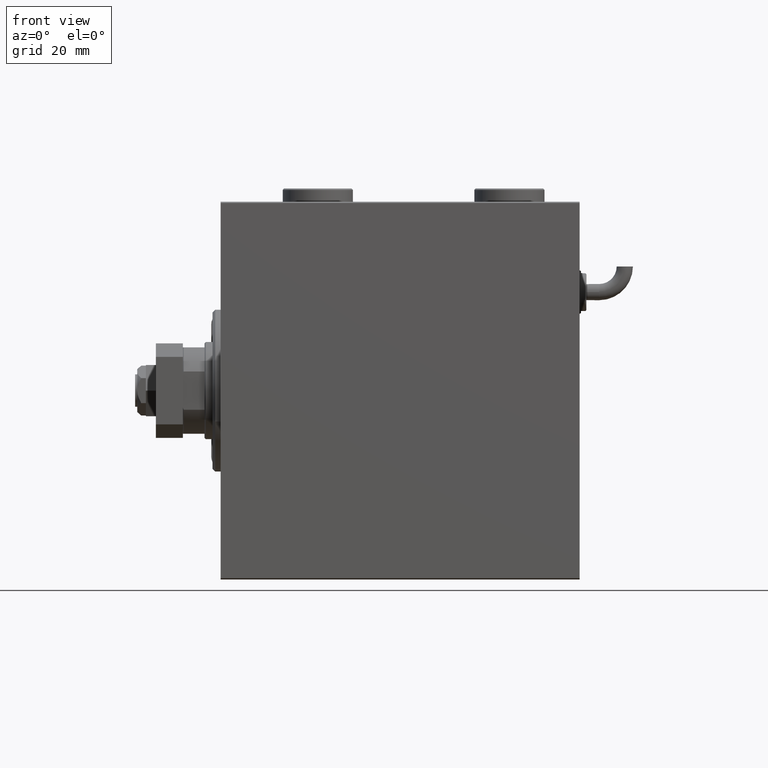
[diagram: clean part render]
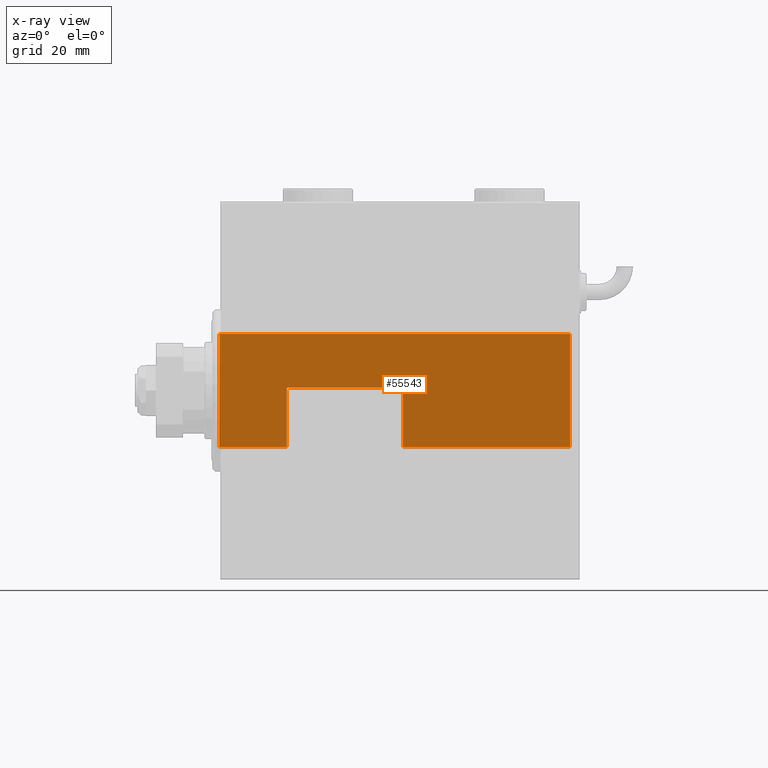
[diagram: x-ray — body ghosted, one internal face saturated and labeled with its STEP entity id]
A machine part, front view, then the same camera in x-ray: the body is ghosted and one INTERNAL B-rep face — a face not visible from any outside direction — is saturated and labeled: STEP entity #55543.
In plain terms, the highlighted planar face has unit normal (0, 1, -0).
Its self-contained STEP definition (entity closure, byte-faithful):
#2221 = CARTESIAN_POINT ( 'NONE',  ( 1.000000000000014655, 22.79999999999999716, 108.0000000000000142 ) ) ;
#3021 = ORIENTED_EDGE ( 'NONE', *, *, #56692, .T. ) ;
#3437 = CARTESIAN_POINT ( 'NONE',  ( 20.99999999999998579, 22.79999999999999716, 133.0000000000000000 ) ) ;
#6072 = CARTESIAN_POINT ( 'NONE',  ( -20.99999999999999645, 22.79999999999999716, 65.00000000000001421 ) ) ;
#6567 = LINE ( 'NONE', #39951, #26966 ) ;
#6691 = DIRECTION ( 'NONE',  ( 0.000000000000000000, 1.000000000000000000, 0.000000000000000000 ) ) ;
#7605 = CARTESIAN_POINT ( 'NONE',  ( -26.00000000000000000, 22.79999999999999716, 133.0000000000000000 ) ) ;
#8566 = CARTESIAN_POINT ( 'NONE',  ( -26.00000000000000000, 22.79999999999999716, 108.0000000000000142 ) ) ;
#8663 = VECTOR ( 'NONE', #31033, 1000.000000000000000 ) ;
#9555 = LINE ( 'NONE', #33965, #25053 ) ;
#11992 = VECTOR ( 'NONE', #46451, 1000.000000000000000 ) ;
#12627 = VERTEX_POINT ( 'NONE', #33633 ) ;
#13015 = CARTESIAN_POINT ( 'NONE',  ( -26.00000000000000000, 22.79999999999999716, 3.000000000000002665 ) ) ;
#13114 = CARTESIAN_POINT ( 'NONE',  ( -20.99999999999999645, 22.79999999999999716, 108.0000000000000142 ) ) ;
#14514 = EDGE_CURVE ( 'NONE', #46584, #46757, #26516, .T. ) ;
#15016 = EDGE_CURVE ( 'NONE', #36182, #29165, #6567, .T. ) ;
#15424 = CARTESIAN_POINT ( 'NONE',  ( -20.99999999999999645, 22.79999999999999716, 3.000000000000002665 ) ) ;
#17330 = EDGE_CURVE ( 'NONE', #34764, #29331, #9555, .T. ) ;
#17470 = LINE ( 'NONE', #60122, #33437 ) ;
#18797 = VERTEX_POINT ( 'NONE', #13114 ) ;
#19055 = VECTOR ( 'NONE', #59890, 1000.000000000000000 ) ;
#20578 = DIRECTION ( 'NONE',  ( 0.000000000000000000, -0.000000000000000000, 1.000000000000000000 ) ) ;
#23372 = ORIENTED_EDGE ( 'NONE', *, *, #36413, .F. ) ;
#24454 = CARTESIAN_POINT ( 'NONE',  ( 1.000000000000014655, 22.79999999999999716, 65.00000000000001421 ) ) ;
#24734 = ORIENTED_EDGE ( 'NONE', *, *, #17330, .T. ) ;
#24789 = DIRECTION ( 'NONE',  ( 0.000000000000000000, -0.000000000000000000, 1.000000000000000000 ) ) ;
#25053 = VECTOR ( 'NONE', #28402, 1000.000000000000000 ) ;
#25777 = LINE ( 'NONE', #30712, #8663 ) ;
#26005 = DIRECTION ( 'NONE',  ( -1.000000000000000000, 0.000000000000000000, 0.000000000000000000 ) ) ;
#26493 = DIRECTION ( 'NONE',  ( 1.000000000000000000, -0.000000000000000000, 0.000000000000000000 ) ) ;
#26516 = LINE ( 'NONE', #41065, #19055 ) ;
#26966 = VECTOR ( 'NONE', #24789, 1000.000000000000000 ) ;
#27583 = CARTESIAN_POINT ( 'NONE',  ( -26.00000000000000000, 22.79999999999999716, 65.00000000000001421 ) ) ;
#28402 = DIRECTION ( 'NONE',  ( 0.000000000000000000, 0.000000000000000000, -1.000000000000000000 ) ) ;
#29165 = VERTEX_POINT ( 'NONE', #2221 ) ;
#29331 = VERTEX_POINT ( 'NONE', #15424 ) ;
#30307 = VECTOR ( 'NONE', #26005, 1000.000000000000000 ) ;
#30712 = CARTESIAN_POINT ( 'NONE',  ( -26.00000000000000000, 22.79999999999999716, 133.0000000000000000 ) ) ;
#31033 = DIRECTION ( 'NONE',  ( 1.000000000000000000, 0.000000000000000000, 0.000000000000000000 ) ) ;
#31557 = LINE ( 'NONE', #13015, #30307 ) ;
#33437 = VECTOR ( 'NONE', #55185, 1000.000000000000000 ) ;
#33633 = CARTESIAN_POINT ( 'NONE',  ( -20.99999999999999645, 22.79999999999999716, 133.0000000000000000 ) ) ;
#33965 = CARTESIAN_POINT ( 'NONE',  ( -20.99999999999999645, 22.79999999999999716, 0.000000000000000000 ) ) ;
#34764 = VERTEX_POINT ( 'NONE', #6072 ) ;
#36182 = VERTEX_POINT ( 'NONE', #24454 ) ;
#36413 = EDGE_CURVE ( 'NONE', #46584, #29331, #31557, .T. ) ;
#36513 = ORIENTED_EDGE ( 'NONE', *, *, #58188, .T. ) ;
#38083 = EDGE_CURVE ( 'NONE', #12627, #46757, #25777, .T. ) ;
#38565 = AXIS2_PLACEMENT_3D ( 'NONE', #7605, #6691, #20578 ) ;
#39951 = CARTESIAN_POINT ( 'NONE',  ( 1.000000000000014655, 22.79999999999999716, 133.0000000000000000 ) ) ;
#40039 = ORIENTED_EDGE ( 'NONE', *, *, #14514, .T. ) ;
#41065 = CARTESIAN_POINT ( 'NONE',  ( 20.99999999999999645, 22.79999999999999716, 133.0000000000000000 ) ) ;
#45018 = EDGE_CURVE ( 'NONE', #12627, #18797, #17470, .T. ) ;
#45636 = ORIENTED_EDGE ( 'NONE', *, *, #38083, .F. ) ;
#46451 = DIRECTION ( 'NONE',  ( -1.000000000000000000, 0.000000000000000000, 0.000000000000000000 ) ) ;
#46583 = LINE ( 'NONE', #8566, #55369 ) ;
#46584 = VERTEX_POINT ( 'NONE', #56633 ) ;
#46757 = VERTEX_POINT ( 'NONE', #3437 ) ;
#47008 = ORIENTED_EDGE ( 'NONE', *, *, #15016, .F. ) ;
#49032 = PLANE ( 'NONE',  #38565 ) ;
#50951 = EDGE_LOOP ( 'NONE', ( #47008, #36513, #24734, #23372, #40039, #45636, #56264, #3021 ) ) ;
#51075 = LINE ( 'NONE', #27583, #11992 ) ;
#55185 = DIRECTION ( 'NONE',  ( 0.000000000000000000, 0.000000000000000000, -1.000000000000000000 ) ) ;
#55369 = VECTOR ( 'NONE', #26493, 1000.000000000000000 ) ;
#55543 = ADVANCED_FACE ( 'NONE', ( #59518 ), #49032, .F. ) ;
#56264 = ORIENTED_EDGE ( 'NONE', *, *, #45018, .T. ) ;
#56633 = CARTESIAN_POINT ( 'NONE',  ( 20.99999999999998579, 22.79999999999999716, 3.000000000000002665 ) ) ;
#56692 = EDGE_CURVE ( 'NONE', #18797, #29165, #46583, .T. ) ;
#58188 = EDGE_CURVE ( 'NONE', #36182, #34764, #51075, .T. ) ;
#59518 = FACE_OUTER_BOUND ( 'NONE', #50951, .T. ) ;
#59890 = DIRECTION ( 'NONE',  ( -0.000000000000000000, -0.000000000000000000, 1.000000000000000000 ) ) ;
#60122 = CARTESIAN_POINT ( 'NONE',  ( -20.99999999999999645, 22.79999999999999716, 0.000000000000000000 ) ) ;